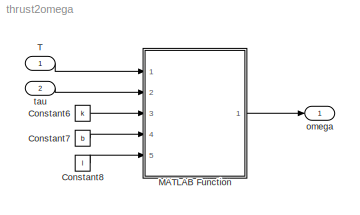
MODEL thrust2omega
KIND model
BLOCK [Constant] Constant6
  SID = 4
  Value = k
BLOCK [Constant] Constant7
  SID = 5
  Value = b
BLOCK [Constant] Constant8
  SID = 6
  Value = l
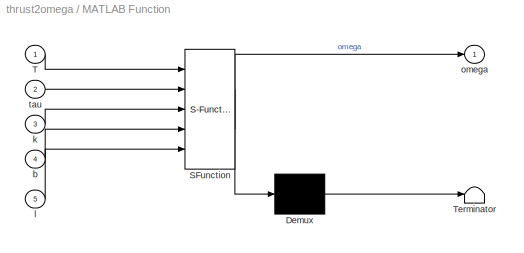
BLOCK [SubSystem] MATLAB Function
  ErrorFcn = Stateflow.Translate.translate
  PermitHierarchicalResolution = ExplicitOnly
  Ports = [5, 1]
  RequestExecContextInheritance = off
  SFBlockType = MATLAB Function
  SID = 7
  TreatAsAtomicUnit = on
  Variant = off
BLOCK [Demux] MATLAB Function/ Demux 
  Outputs = 1
  Ports = [1, 1]
  SID = 7::17
BLOCK [S-Function] MATLAB Function/ SFunction 
  EnableBusSupport = on
  FunctionName = sf_sfun
  PortCounts = [5 2]
  Ports = [5, 2]
  SFunctionDeploymentMode = off
  SID = 7::16
  Tag = Stateflow S-Function thrust2omega 3
BLOCK [Terminator] MATLAB Function/ Terminator 
  SID = 7::18
BLOCK [Inport] MATLAB Function/T
  IconDisplay = Port number
  SID = 7::1
BLOCK [Inport] MATLAB Function/b
  IconDisplay = Port number
  Port = 4
  SID = 7::21
BLOCK [Inport] MATLAB Function/k
  IconDisplay = Port number
  Port = 3
  SID = 7::20
BLOCK [Inport] MATLAB Function/l
  IconDisplay = Port number
  Port = 5
  SID = 7::22
BLOCK [Outport] MATLAB Function/omega
  IconDisplay = Port number
  SID = 7::5
BLOCK [Inport] MATLAB Function/tau
  IconDisplay = Port number
  Port = 2
  SID = 7::19
BLOCK [Inport] T
  IconDisplay = Port number
  PortDimensions = 1
  SID = 2
BLOCK [Outport] omega
  IconDisplay = Port number
  PortDimensions = 4
  SID = 8
BLOCK [Inport] tau
  IconDisplay = Port number
  Port = 2
  PortDimensions = 3
  SID = 3
LINE Constant6:1 -> MATLAB Function:3
LINE Constant7:1 -> MATLAB Function:4
LINE Constant8:1 -> MATLAB Function:5
LINE MATLAB Function/ Demux :1 -> MATLAB Function/ Terminator :1
LINE MATLAB Function/ SFunction :1 -> MATLAB Function/ Demux :1
LINE MATLAB Function/ SFunction :2 -> MATLAB Function/omega:1
LINE MATLAB Function/T:1 -> MATLAB Function/ SFunction :1
LINE MATLAB Function/b:1 -> MATLAB Function/ SFunction :4
LINE MATLAB Function/k:1 -> MATLAB Function/ SFunction :3
LINE MATLAB Function/l:1 -> MATLAB Function/ SFunction :5
LINE MATLAB Function/tau:1 -> MATLAB Function/ SFunction :2
LINE MATLAB Function:1 -> omega:1
LINE T:1 -> MATLAB Function:1
LINE tau:1 -> MATLAB Function:2
CHART MATLAB Function states=1 transitions=1
  STATE_LABEL 'eML_blk_kernel()'
